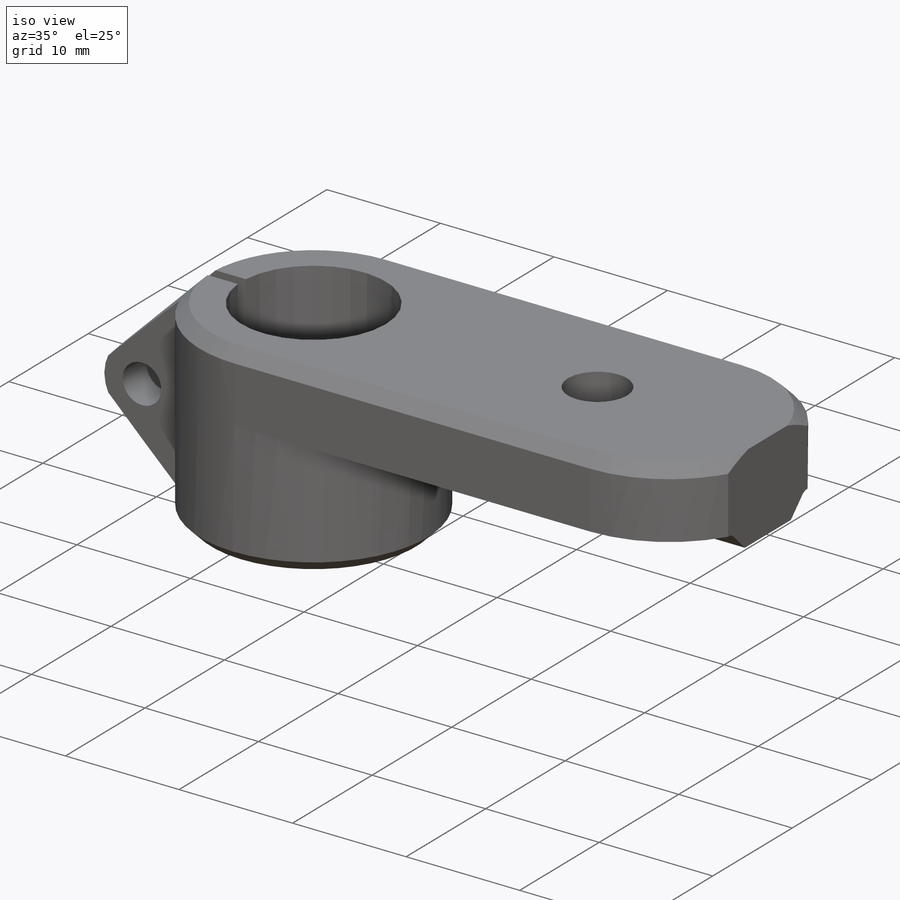
[diagram: iso view]
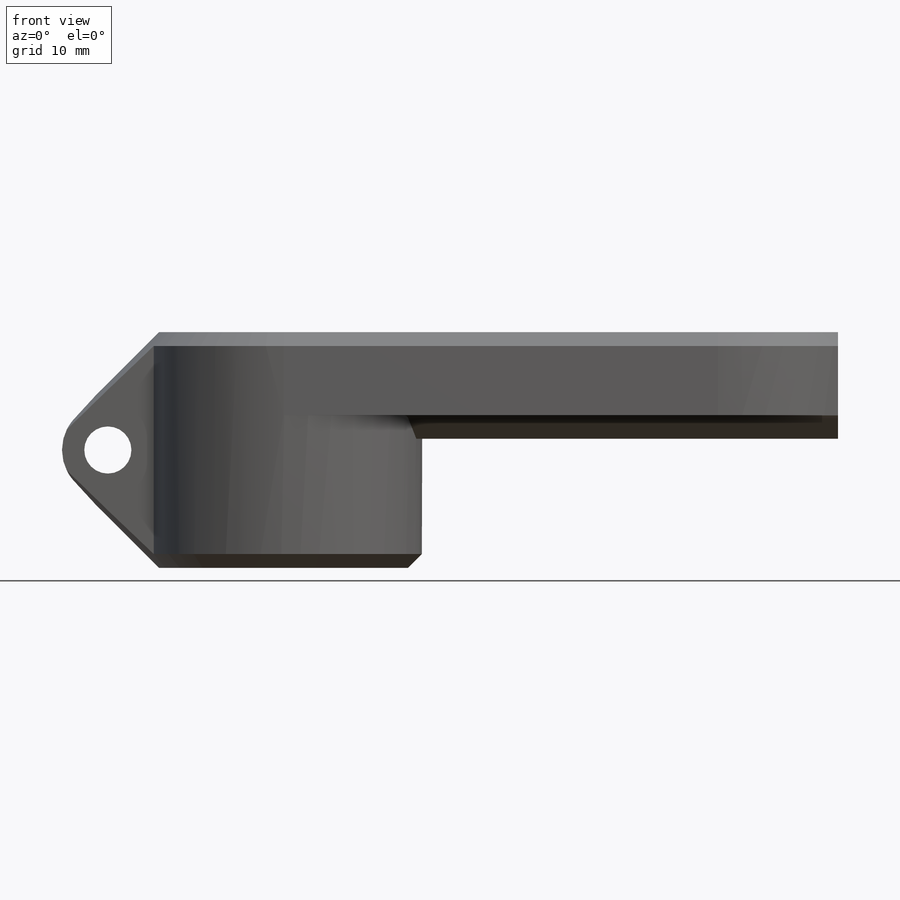
[diagram: front view]
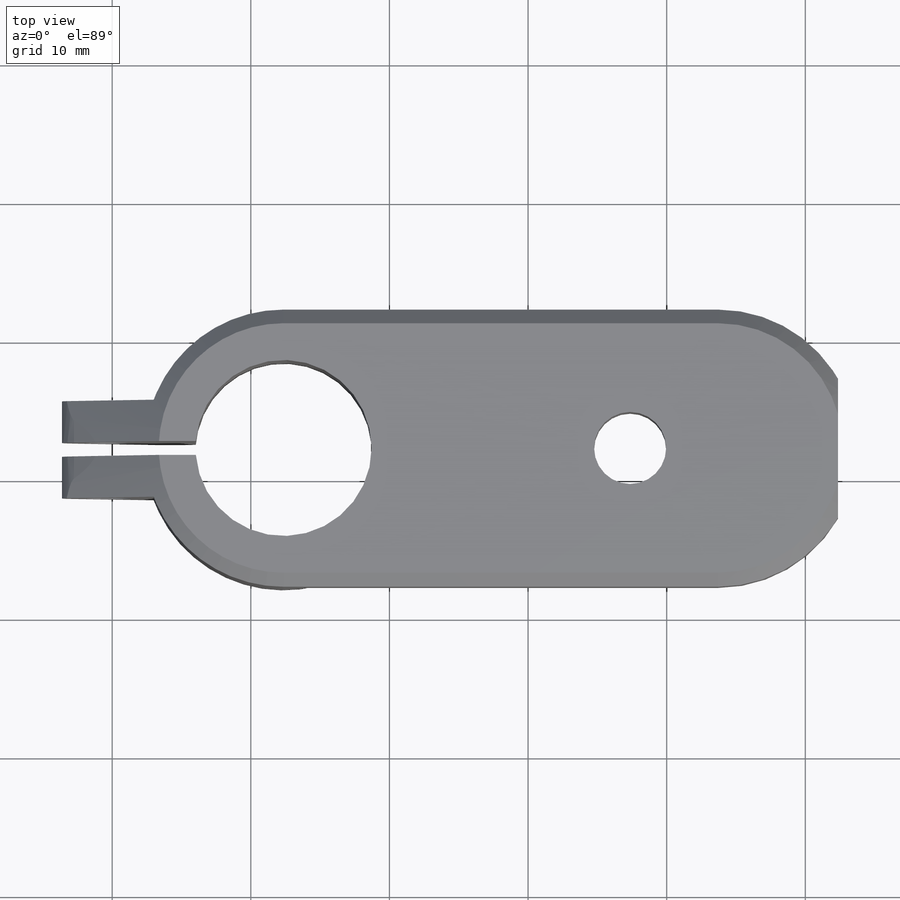
[diagram: top view]
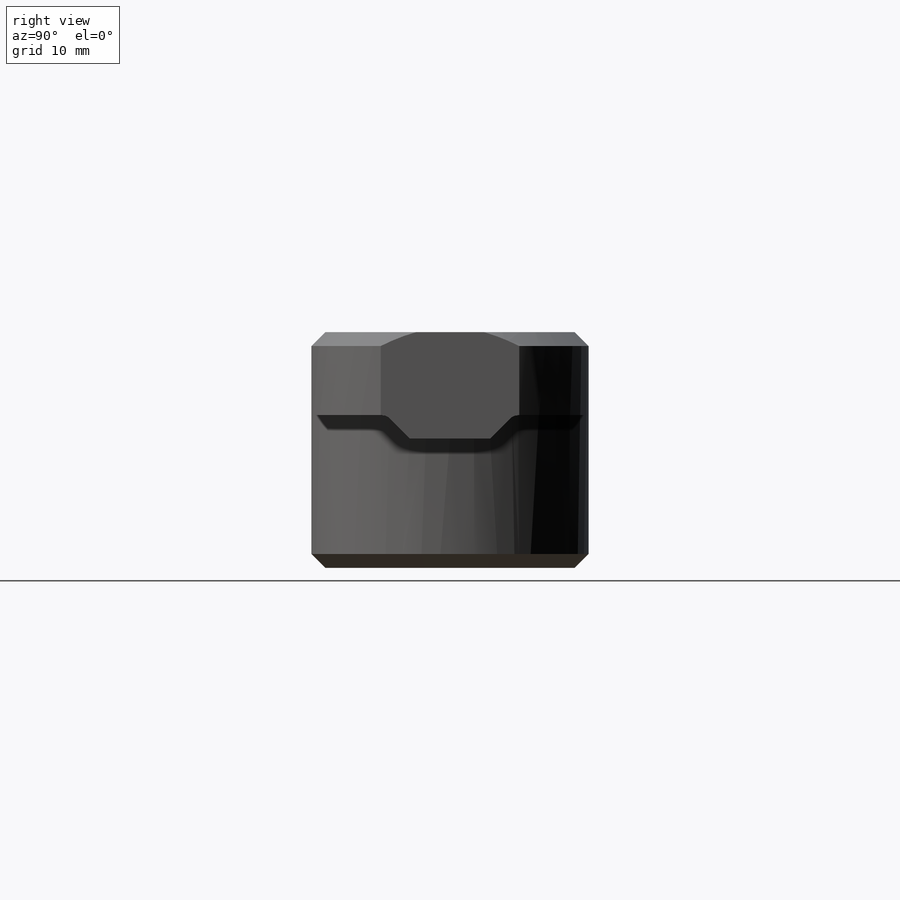
[diagram: right view]
SOLIDWORKS PART (.sldprt)
format: sldprt  version: not decoded by parser v0  size: 473,600 bytes
history: native  units: mm
features: sketch x10, cut_extrude x7, extrude x3, material x1, chamfer x1 (+12 scaffold rows collapsed)
feature tree (34):
  scaffold x12  (default folders/planes/origin — collapsed)
  material  "Material <not specified>"
  sketch  "Sketch1"  dims[c1.D2=~2.373018mm c1.D3=20.0mm c2.D2=6.0mm c2.D3=5.78mm c2.D1=0.0mm]
  extrude  "Boss-Extrude1"  Depth=50mm
  sketch  "Sketch2"  dims[c1.D1=~9.115659mm c1.D2=15.0mm c1.D3=22.5mm c1.D4=~1.657802mm c2.D3=0.0mm]
  cut_extrude  "Cut-Extrude1"  [1 undecoded]
  sketch  "Sketch9"  dims[D1=10.0mm]
  cut_extrude  "Cut-Extrude4"  [1 undecoded]
  sketch  "Sketch16"  dims[c1.D1=12.7mm c1.D2=10.0mm c1.D3=~7.619707mm c2.D3=90.0deg c3.D3=10.0mm]
  cut_extrude  "Cut-Extrude8"  [1 undecoded]
  sketch  "Sketch17"  dims[D1=20.0mm D2=~4.554041mm]
  cut_extrude  "Cut-Extrude9"  Depth=17mm
  sketch  "Sketch20"  dims[D1=2.0mm]
  extrude  "Boss-Extrude4"  Depth=11mm
  sketch  "Sketch21"
  cut_extrude  "Cut-Extrude10"  [1 undecoded]
  sketch  "Sketch22"  dims[c1.D1=~1.250045mm c1.D2=~7.708609mm c2.D1=5.0mm c2.D2=1.0mm c2.D3=1.0mm]
  cut_extrude  "Cut-Extrude11"  [1 undecoded]
  sketch  "Sketch23"  dims[c1.D1=~3.25904mm c1.D2=~22.93763mm c2.D1=~2.696311mm c2.D2=~11.196443mm c3.D1=~2.386667mm c3.D2=~11.196443mm c4.D1=6.0mm c4.D2=6.0mm c4.D3=3.0mm c4.D4=3.0mm]
  extrude  "Boss-Extrude5"  [1 undecoded]
  sketch  "Sketch24"  dims[D1=~10.380279mm]
  cut_extrude  "Cut-Extrude12"  Depth=10mm
  chamfer  "Chamfer1"  Distance=1mm Angle=45deg
decode coverage: 14 of 21 modeling features carry decoded parameters
note: ~ marks probable driven/reference dimensions
note: 6 parameter values undecoded
summary: no parameter record found for 6 features
note: suppression state not decoded; provenance and decode notes live in map.json
